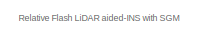
[diagram: root canvas - part 1/5, top left region]
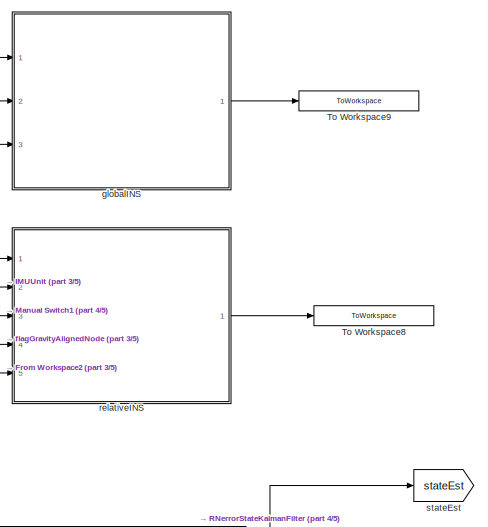
[diagram: root canvas - part 2/5, top right region]
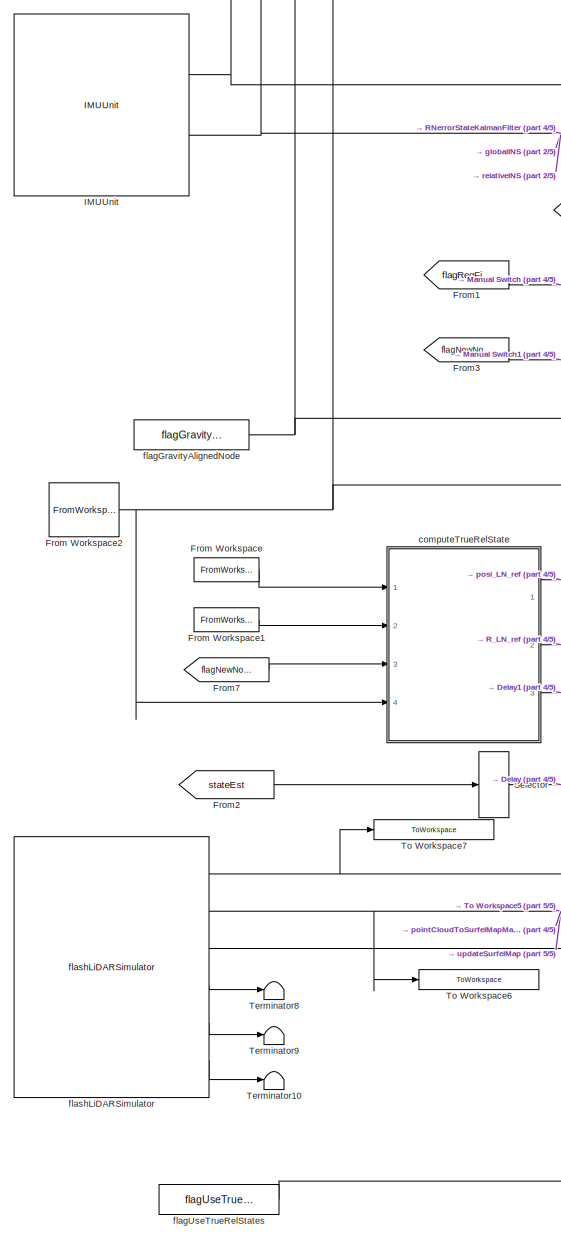
[diagram: root canvas - part 3/5, middle left region]
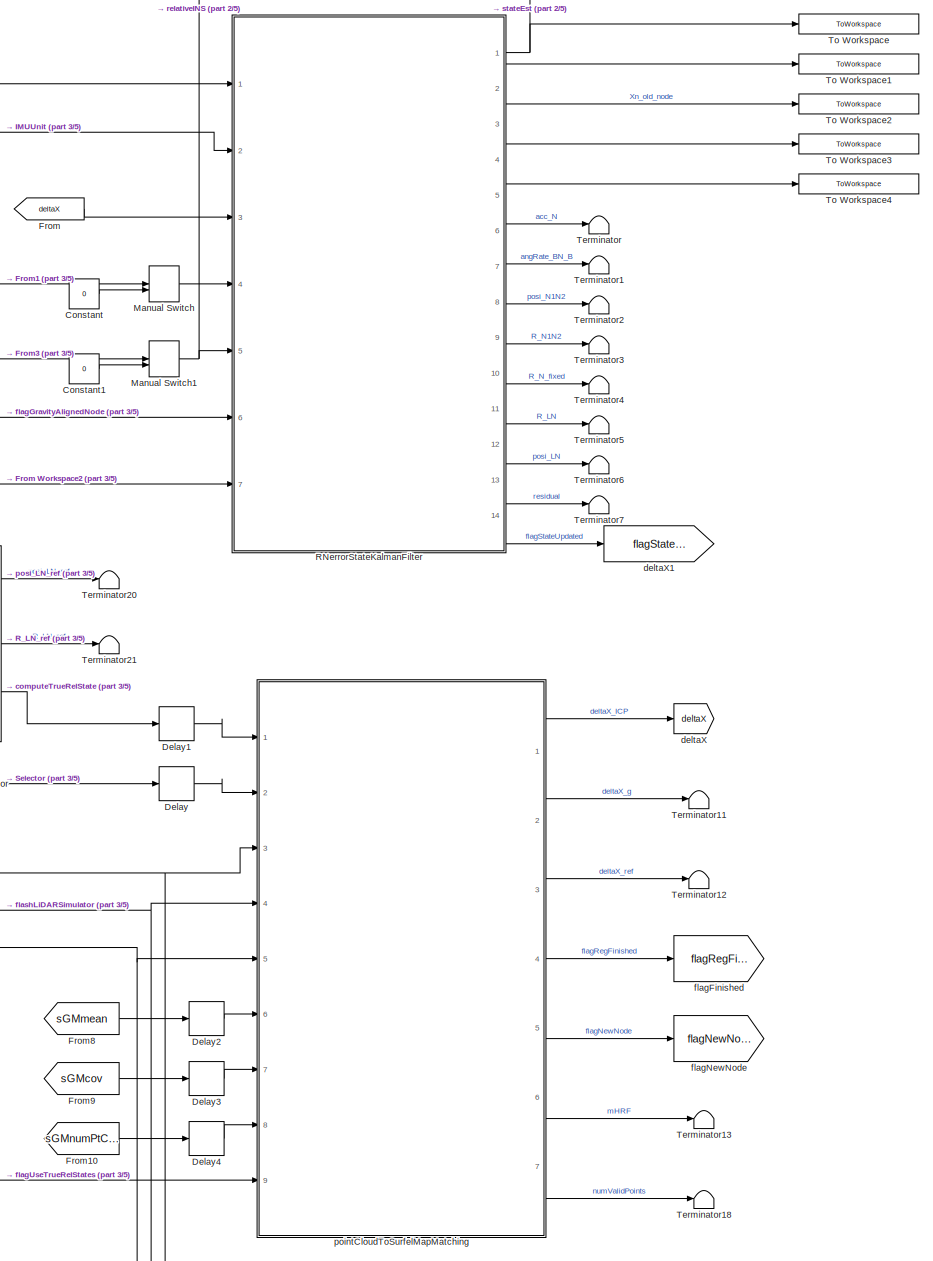
[diagram: root canvas - part 4/5, central region]
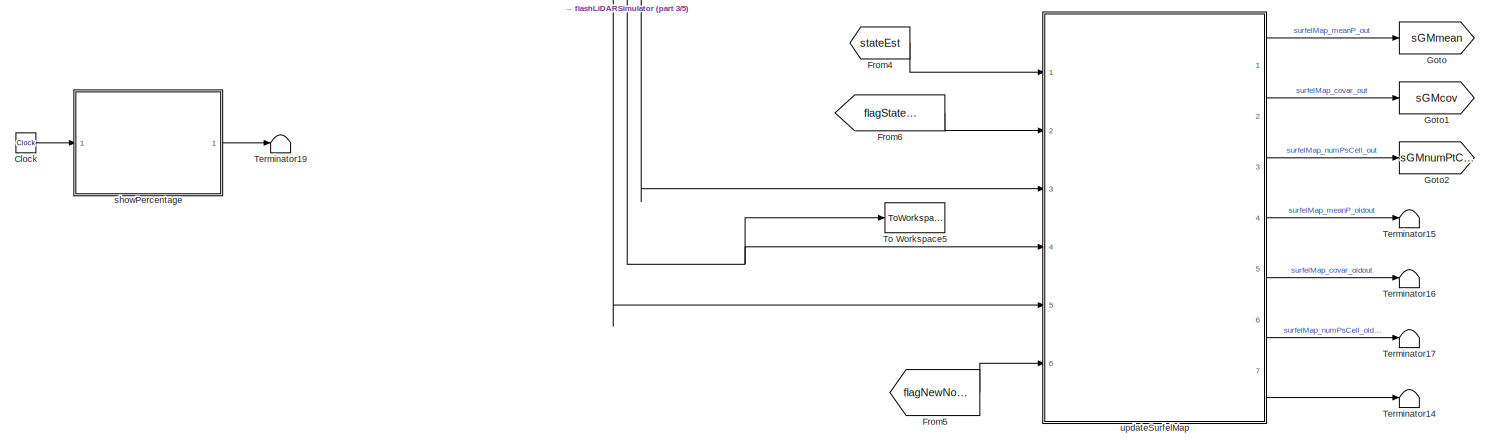
[diagram: root canvas - part 5/5, full width, bottom band]
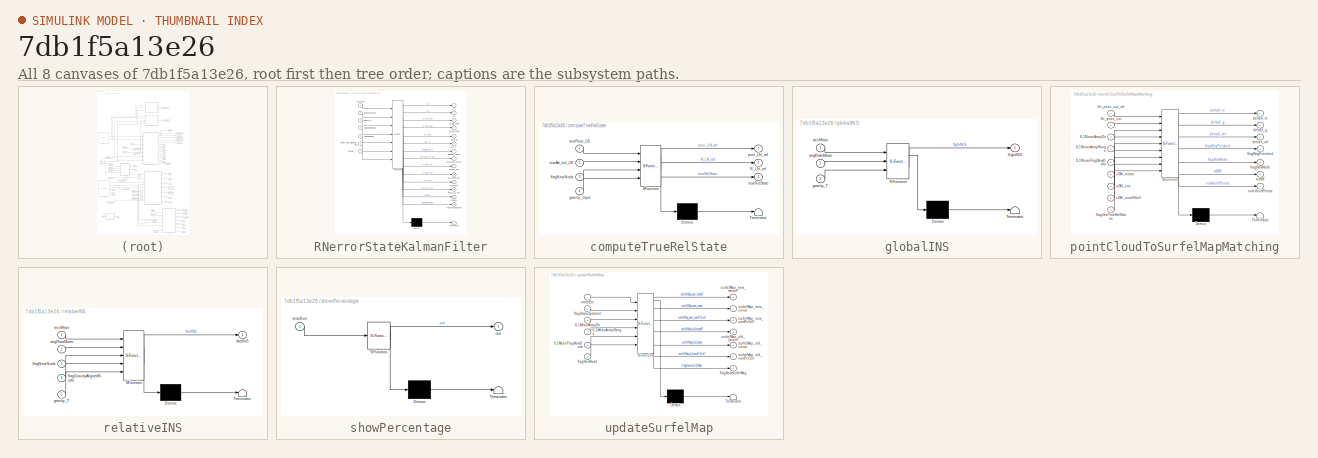
[diagram: thumbnail index - all 8 canvases of the model, root first then tree order]
MODEL slx_7db1f5a13e26
KIND model
CONFIG AbsTol = auto
CONFIG EnableMultiTasking = off
CONFIG FixedStep = dtSim
CONFIG MaxStep = auto
CONFIG MinStep = auto
CONFIG RelTol = 1e-3
CONFIG SampleTimeConstraint = Unconstrained
CONFIG SolverName = FixedStepAuto
CONFIG StartTime = 0.0
CONFIG StopTime = tEnd
BLOCK [Clock] Clock
BLOCK [Constant] Constant
  Value = 0
BLOCK [Constant] Constant1
  Value = 0
BLOCK [Delay] Delay
  DelayLength = 1
  InputPortMap = u0
  Ports = [1, 1]
BLOCK [Delay] Delay1
  DelayLength = 1
  InputPortMap = u0
  Ports = [1, 1]
BLOCK [Delay] Delay2
  DelayLength = 1
  InputPortMap = u0
  Ports = [1, 1]
BLOCK [Delay] Delay3
  DelayLength = 1
  InputPortMap = u0
  Ports = [1, 1]
BLOCK [Delay] Delay4
  DelayLength = 1
  InputPortMap = u0
  Ports = [1, 1]
BLOCK [From] From
  GotoTag = deltaX
BLOCK [FromWorkspace] From Workspace
  VariableName = dataBase.posi_LB_L_ref
BLOCK [FromWorkspace] From Workspace1
  VariableName = dataBase.eulAng_LB_ref
BLOCK [FromWorkspace] From Workspace2
  VariableName = gravity_input
BLOCK [From] From1
  GotoTag = flagRegFinished
BLOCK [From] From10
  GotoTag = sGMnumPtCell
BLOCK [From] From2
  GotoTag = stateEst
BLOCK [From] From3
  GotoTag = flagNewNode
BLOCK [From] From4
  GotoTag = stateEst
BLOCK [From] From5
  GotoTag = flagNewNode
BLOCK [From] From6
  GotoTag = flagStateUpdated
BLOCK [From] From7
  GotoTag = flagNewNode
BLOCK [From] From8
  GotoTag = sGMmean
BLOCK [From] From9
  GotoTag = sGMcov
BLOCK [Goto] Goto
  GotoTag = sGMmean
BLOCK [Goto] Goto1
  GotoTag = sGMcov
BLOCK [Goto] Goto2
  GotoTag = sGMnumPtCell
BLOCK [Reference] IMUUnit  REF=IMUUnit/IMUUnit
  Ports = [0, 2]
  SourceBlock = IMUUnit/IMUUnit
  SourceType = SubSystem
BLOCK [ManualSwitch] Manual Switch
BLOCK [ManualSwitch] Manual Switch1
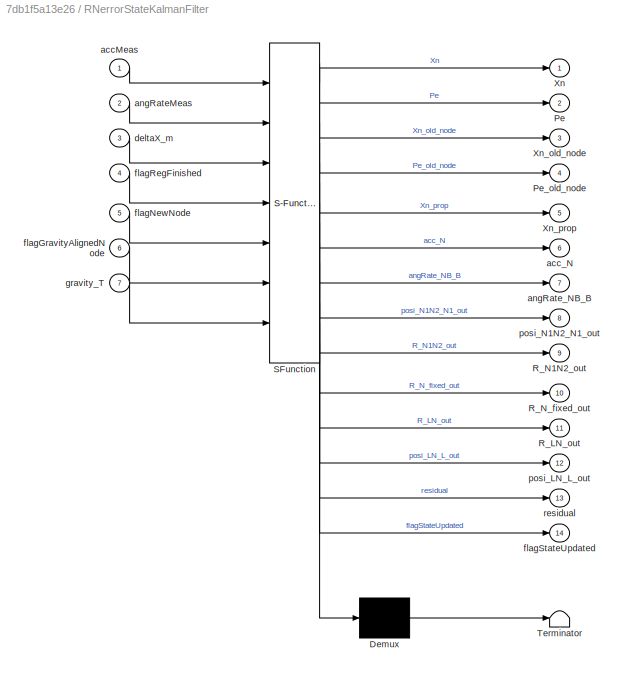
BLOCK [SubSystem] RNerrorStateKalmanFilter
  ErrorFcn = Stateflow.Translate.translate
  PermitHierarchicalResolution = ExplicitOnly
  Ports = [7, 14]
  RequestExecContextInheritance = off
  SFBlockType = MATLAB Function
  TreatAsAtomicUnit = on
BLOCK [Demux] RNerrorStateKalmanFilter/ Demux 
  Outputs = 1
  Ports = [1, 1]
BLOCK [S-Function] RNerrorStateKalmanFilter/ SFunction 
  EnableBusSupport = off
  FunctionName = sf_sfun
  Parameters = angRate_IT_T,covMeasNoise,covProcessNoise,dtSim,initCovState,initX,posi_TL_T,quat_TL
  PortCounts = [7 15]
  Ports = [7, 15]
  SFcnIsStateOwnerBlock = off
  SFunctionDeploymentMode = off
  Tag = Stateflow S-Function 2
BLOCK [Terminator] RNerrorStateKalmanFilter/ Terminator 
BLOCK [Outport] RNerrorStateKalmanFilter/Pe
  Port = 2
  VectorParamsAs1DForOutWhenUnconnected = off
BLOCK [Outport] RNerrorStateKalmanFilter/Pe_old_node
  Port = 4
  VectorParamsAs1DForOutWhenUnconnected = off
BLOCK [Outport] RNerrorStateKalmanFilter/R_LN_out
  Port = 11
  VectorParamsAs1DForOutWhenUnconnected = off
BLOCK [Outport] RNerrorStateKalmanFilter/R_N1N2_out
  Port = 9
  VectorParamsAs1DForOutWhenUnconnected = off
BLOCK [Outport] RNerrorStateKalmanFilter/R_N_fixed_out
  Port = 10
  VectorParamsAs1DForOutWhenUnconnected = off
BLOCK [Outport] RNerrorStateKalmanFilter/Xn
  VectorParamsAs1DForOutWhenUnconnected = off
BLOCK [Outport] RNerrorStateKalmanFilter/Xn_old_node
  Port = 3
  VectorParamsAs1DForOutWhenUnconnected = off
BLOCK [Outport] RNerrorStateKalmanFilter/Xn_prop
  Port = 5
  VectorParamsAs1DForOutWhenUnconnected = off
BLOCK [Inport] RNerrorStateKalmanFilter/accMeas
BLOCK [Outport] RNerrorStateKalmanFilter/acc_N
  Port = 6
  VectorParamsAs1DForOutWhenUnconnected = off
BLOCK [Inport] RNerrorStateKalmanFilter/angRateMeas
  Port = 2
BLOCK [Outport] RNerrorStateKalmanFilter/angRate_NB_B
  Port = 7
  VectorParamsAs1DForOutWhenUnconnected = off
BLOCK [Inport] RNerrorStateKalmanFilter/deltaX_m
  Port = 3
BLOCK [Inport] RNerrorStateKalmanFilter/flagGravityAlignedNode
  Port = 6
BLOCK [Inport] RNerrorStateKalmanFilter/flagNewNode
  Port = 5
BLOCK [Inport] RNerrorStateKalmanFilter/flagRegFinished
  Port = 4
BLOCK [Outport] RNerrorStateKalmanFilter/flagStateUpdated
  Port = 14
  VectorParamsAs1DForOutWhenUnconnected = off
BLOCK [Inport] RNerrorStateKalmanFilter/gravity_T
  Port = 7
BLOCK [Outport] RNerrorStateKalmanFilter/posi_LN_L_out
  Port = 12
  VectorParamsAs1DForOutWhenUnconnected = off
BLOCK [Outport] RNerrorStateKalmanFilter/posi_N1N2_N1_out
  Port = 8
  VectorParamsAs1DForOutWhenUnconnected = off
BLOCK [Outport] RNerrorStateKalmanFilter/residual
  Port = 13
  VectorParamsAs1DForOutWhenUnconnected = off
BLOCK [Selector] Selector
  IndexOptions = Index vector (dialog)
  Indices = [1:3 7:10]
  InputPortWidth = 10
  OutputSizes = 1
  Ports = [1, 1]
BLOCK [Terminator] Terminator
BLOCK [Terminator] Terminator1
BLOCK [Terminator] Terminator10
BLOCK [Terminator] Terminator11
BLOCK [Terminator] Terminator12
BLOCK [Terminator] Terminator13
BLOCK [Terminator] Terminator14
BLOCK [Terminator] Terminator15
BLOCK [Terminator] Terminator16
BLOCK [Terminator] Terminator17
BLOCK [Terminator] Terminator18
BLOCK [Terminator] Terminator19
BLOCK [Terminator] Terminator2
BLOCK [Terminator] Terminator20
BLOCK [Terminator] Terminator21
BLOCK [Terminator] Terminator3
BLOCK [Terminator] Terminator4
BLOCK [Terminator] Terminator5
BLOCK [Terminator] Terminator6
BLOCK [Terminator] Terminator7
BLOCK [Terminator] Terminator8
BLOCK [Terminator] Terminator9
BLOCK [ToWorkspace] To Workspace
  FixptAsFi = on
  MaxDataPoints = inf
  Ports = [1]
  SampleTime = -1
  SaveFormat = Structure With Time
  VariableName = stateEstimates
BLOCK [ToWorkspace] To Workspace1
  FixptAsFi = on
  MaxDataPoints = inf
  Ports = [1]
  SampleTime = -1
  SaveFormat = Structure With Time
  VariableName = errorCov
BLOCK [ToWorkspace] To Workspace2
  FixptAsFi = on
  MaxDataPoints = inf
  Ports = [1]
  SampleTime = -1
  SaveFormat = Structure With Time
  VariableName = Xn_old_node
BLOCK [ToWorkspace] To Workspace3
  FixptAsFi = on
  MaxDataPoints = inf
  Ports = [1]
  SampleTime = -1
  SaveFormat = Structure With Time
  VariableName = Pe_old_node
BLOCK [ToWorkspace] To Workspace4
  FixptAsFi = on
  MaxDataPoints = inf
  Ports = [1]
  SampleTime = -1
  SaveFormat = Structure With Time
  VariableName = Xn_node
BLOCK [ToWorkspace] To Workspace5
  Commented = on
  FixptAsFi = on
  MaxDataPoints = inf
  Ports = [1]
  SampleTime = -1
  SaveFormat = Structure With Time
  VariableName = fL1RangeData
BLOCK [ToWorkspace] To Workspace6
  FixptAsFi = on
  MaxDataPoints = inf
  Ports = [1]
  SampleTime = -1
  SaveFormat = Structure With Time
  VariableName = fL1Range
BLOCK [ToWorkspace] To Workspace7
  Commented = on
  FixptAsFi = on
  MaxDataPoints = inf
  Ports = [1]
  SampleTime = -1
  SaveFormat = Structure With Time
  VariableName = fL1Dir
BLOCK [ToWorkspace] To Workspace8
  FixptAsFi = on
  MaxDataPoints = inf
  Ports = [1]
  SampleTime = -1
  SaveFormat = Structure With Time
  VariableName = XrelINS
BLOCK [ToWorkspace] To Workspace9
  FixptAsFi = on
  MaxDataPoints = inf
  Ports = [1]
  SampleTime = -1
  SaveFormat = Structure With Time
  VariableName = XgloINS
BLOCK [SubSystem] computeTrueRelState
  ErrorFcn = Stateflow.Translate.translate
  PermitHierarchicalResolution = ExplicitOnly
  Ports = [4, 3]
  RequestExecContextInheritance = off
  SFBlockType = MATLAB Function
  TreatAsAtomicUnit = on
BLOCK [Demux] computeTrueRelState/ Demux 
  Outputs = 1
  Ports = [1, 1]
BLOCK [S-Function] computeTrueRelState/ SFunction 
  EnableBusSupport = off
  FunctionName = sf_sfun
  Parameters = angRate_IT_T,flagGravityAlignedNode,initX,posi_TL_T,quat_TL
  PortCounts = [4 4]
  Ports = [4, 4]
  SFcnIsStateOwnerBlock = off
  SFunctionDeploymentMode = off
  Tag = Stateflow S-Function 3
BLOCK [Terminator] computeTrueRelState/ Terminator 
BLOCK [Outport] computeTrueRelState/R_LN_ref
  Port = 2
  VectorParamsAs1DForOutWhenUnconnected = off
BLOCK [Inport] computeTrueRelState/flagNewNode
  Port = 3
BLOCK [Inport] computeTrueRelState/gravity_input
  Port = 4
BLOCK [Outport] computeTrueRelState/posi_LN_ref
  VectorParamsAs1DForOutWhenUnconnected = off
BLOCK [Inport] computeTrueRelState/trueAtt_eul_LB
  Port = 2
BLOCK [Inport] computeTrueRelState/truePose_LB
BLOCK [Outport] computeTrueRelState/trueRelState
  Port = 3
  VectorParamsAs1DForOutWhenUnconnected = off
BLOCK [Goto] deltaX
  GotoTag = deltaX
BLOCK [Goto] deltaX1
  GotoTag = flagStateUpdated
BLOCK [Goto] flagFinished
  GotoTag = flagRegFinished
BLOCK [Constant] flagGravityAlignedNode
  Value = flagGravityAlignedNode
BLOCK [Goto] flagNewNode
  GotoTag = flagNewNode
BLOCK [Constant] flagUseTrueRelStates
  Value = flagUseTrueRelStates
BLOCK [Reference] flashLiDARSimulator  REF=flashLiDARUnit/flashLiDARSimulator
  Ports = [0, 6]
  SourceBlock = flashLiDARUnit/flashLiDARSimulator
  SourceType = SubSystem
BLOCK [SubSystem] globalINS
  ErrorFcn = Stateflow.Translate.translate
  PermitHierarchicalResolution = ExplicitOnly
  Ports = [3, 1]
  RequestExecContextInheritance = off
  SFBlockType = MATLAB Function
  TreatAsAtomicUnit = on
BLOCK [Demux] globalINS/ Demux 
  Outputs = 1
  Ports = [1, 1]
BLOCK [S-Function] globalINS/ SFunction 
  EnableBusSupport = off
  FunctionName = sf_sfun
  Parameters = angRate_IT_T,dtSim,initX,posi_TL_T,quat_TL
  PortCounts = [3 2]
  Ports = [3, 2]
  SFcnIsStateOwnerBlock = off
  SFunctionDeploymentMode = off
  Tag = Stateflow S-Function 7
BLOCK [Terminator] globalINS/ Terminator 
BLOCK [Outport] globalINS/XgloINS
  VectorParamsAs1DForOutWhenUnconnected = off
BLOCK [Inport] globalINS/accMeas
BLOCK [Inport] globalINS/angRateMeas
  Port = 2
BLOCK [Inport] globalINS/gravity_T
  Port = 3
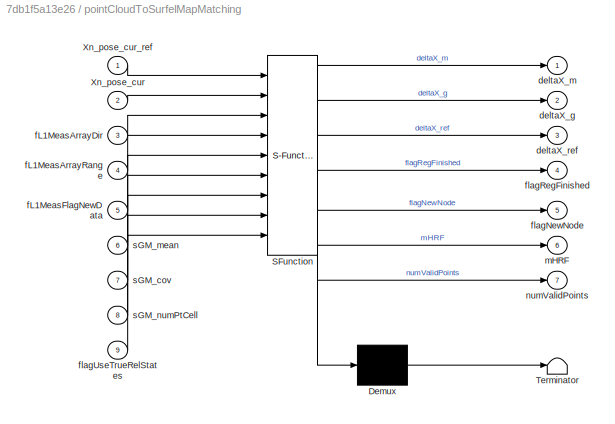
BLOCK [SubSystem] pointCloudToSurfelMapMatching
  ErrorFcn = Stateflow.Translate.translate
  PermitHierarchicalResolution = ExplicitOnly
  Ports = [9, 7]
  RequestExecContextInheritance = off
  SFBlockType = MATLAB Function
  TreatAsAtomicUnit = on
BLOCK [Demux] pointCloudToSurfelMapMatching/ Demux 
  Outputs = 1
  Ports = [1, 1]
BLOCK [S-Function] pointCloudToSurfelMapMatching/ SFunction 
  EnableBusSupport = off
  FunctionName = sf_sfun
  Parameters = fL1Pose_B,fLArrayDim,paramSGM
  PortCounts = [9 8]
  Ports = [9, 8]
  SFcnIsStateOwnerBlock = off
  SFunctionDeploymentMode = off
  Tag = Stateflow S-Function 1
BLOCK [Terminator] pointCloudToSurfelMapMatching/ Terminator 
BLOCK [Inport] pointCloudToSurfelMapMatching/Xn_pose_cur
  Port = 2
BLOCK [Inport] pointCloudToSurfelMapMatching/Xn_pose_cur_ref
BLOCK [Outport] pointCloudToSurfelMapMatching/deltaX_g
  Port = 2
  VectorParamsAs1DForOutWhenUnconnected = off
BLOCK [Outport] pointCloudToSurfelMapMatching/deltaX_m
  VectorParamsAs1DForOutWhenUnconnected = off
BLOCK [Outport] pointCloudToSurfelMapMatching/deltaX_ref
  Port = 3
  VectorParamsAs1DForOutWhenUnconnected = off
BLOCK [Inport] pointCloudToSurfelMapMatching/fL1MeasArrayDir
  Port = 3
BLOCK [Inport] pointCloudToSurfelMapMatching/fL1MeasArrayRange
  Port = 4
BLOCK [Inport] pointCloudToSurfelMapMatching/fL1MeasFlagNewData
  Port = 5
BLOCK [Outport] pointCloudToSurfelMapMatching/flagNewNode
  Port = 5
  VectorParamsAs1DForOutWhenUnconnected = off
BLOCK [Outport] pointCloudToSurfelMapMatching/flagRegFinished
  Port = 4
  VectorParamsAs1DForOutWhenUnconnected = off
BLOCK [Inport] pointCloudToSurfelMapMatching/flagUseTrueRelStates
  Port = 9
BLOCK [Outport] pointCloudToSurfelMapMatching/mHRF
  Port = 6
  VectorParamsAs1DForOutWhenUnconnected = off
BLOCK [Outport] pointCloudToSurfelMapMatching/numValidPoints
  Port = 7
  VectorParamsAs1DForOutWhenUnconnected = off
BLOCK [Inport] pointCloudToSurfelMapMatching/sGM_cov
  Port = 7
BLOCK [Inport] pointCloudToSurfelMapMatching/sGM_mean
  Port = 6
BLOCK [Inport] pointCloudToSurfelMapMatching/sGM_numPtCell
  Port = 8
BLOCK [SubSystem] relativeINS
  ErrorFcn = Stateflow.Translate.translate
  PermitHierarchicalResolution = ExplicitOnly
  Ports = [5, 1]
  RequestExecContextInheritance = off
  SFBlockType = MATLAB Function
  TreatAsAtomicUnit = on
BLOCK [Demux] relativeINS/ Demux 
  Outputs = 1
  Ports = [1, 1]
BLOCK [S-Function] relativeINS/ SFunction 
  EnableBusSupport = off
  FunctionName = sf_sfun
  Parameters = angRate_IT_T,dtSim,initX,posi_TL_T,quat_TL
  PortCounts = [5 2]
  Ports = [5, 2]
  SFcnIsStateOwnerBlock = off
  SFunctionDeploymentMode = off
  Tag = Stateflow S-Function 6
BLOCK [Terminator] relativeINS/ Terminator 
BLOCK [Outport] relativeINS/XrelINS
  VectorParamsAs1DForOutWhenUnconnected = off
BLOCK [Inport] relativeINS/accMeas
BLOCK [Inport] relativeINS/angRateMeas
  Port = 2
BLOCK [Inport] relativeINS/flagGravityAlignedNode
  Port = 4
BLOCK [Inport] relativeINS/flagNewNode
  Port = 3
BLOCK [Inport] relativeINS/gravity_T
  Port = 5
BLOCK [SubSystem] showPercentage
  ErrorFcn = Stateflow.Translate.translate
  PermitHierarchicalResolution = ExplicitOnly
  Ports = [1, 1]
  RequestExecContextInheritance = off
  SFBlockType = MATLAB Function
  TreatAsAtomicUnit = on
BLOCK [Demux] showPercentage/ Demux 
  Outputs = 1
  Ports = [1, 1]
BLOCK [S-Function] showPercentage/ SFunction 
  EnableBusSupport = off
  FunctionName = sf_sfun
  Parameters = tEnd
  PortCounts = [1 2]
  Ports = [1, 2]
  SFcnIsStateOwnerBlock = off
  SFunctionDeploymentMode = off
  Tag = Stateflow S-Function 5
BLOCK [Terminator] showPercentage/ Terminator 
BLOCK [Outport] showPercentage/out
  VectorParamsAs1DForOutWhenUnconnected = off
BLOCK [Inport] showPercentage/timeSim
BLOCK [Goto] stateEst
  GotoTag = stateEst
BLOCK [SubSystem] updateSurfelMap
  ErrorFcn = Stateflow.Translate.translate
  PermitHierarchicalResolution = ExplicitOnly
  Ports = [6, 7]
  RequestExecContextInheritance = off
  SFBlockType = MATLAB Function
  TreatAsAtomicUnit = on
BLOCK [Demux] updateSurfelMap/ Demux 
  Outputs = 1
  Ports = [1, 1]
BLOCK [S-Function] updateSurfelMap/ SFunction 
  EnableBusSupport = off
  FunctionName = sf_sfun
  Parameters = fL1Pose_B,paramSGM
  PortCounts = [6 8]
  Ports = [6, 8]
  SFcnIsStateOwnerBlock = off
  SFunctionDeploymentMode = off
  Tag = Stateflow S-Function 4
BLOCK [Terminator] updateSurfelMap/ Terminator 
BLOCK [Inport] updateSurfelMap/fL1MeasArrayDir
  Port = 3
BLOCK [Inport] updateSurfelMap/fL1MeasArrayRange
  Port = 4
BLOCK [Inport] updateSurfelMap/fL1MeasFlagNewData
  Port = 5
BLOCK [Inport] updateSurfelMap/flagNewNode
  Port = 6
BLOCK [Outport] updateSurfelMap/flagNewSurfelMap
  Port = 7
  VectorParamsAs1DForOutWhenUnconnected = off
BLOCK [Inport] updateSurfelMap/flagStateUpdated
  Port = 2
BLOCK [Inport] updateSurfelMap/stateEst
BLOCK [Outport] updateSurfelMap/surfelMap_new_covar
  Port = 2
  VectorParamsAs1DForOutWhenUnconnected = off
BLOCK [Outport] updateSurfelMap/surfelMap_new_meanP
  VectorParamsAs1DForOutWhenUnconnected = off
BLOCK [Outport] updateSurfelMap/surfelMap_new_numPsCell
  Port = 3
  VectorParamsAs1DForOutWhenUnconnected = off
BLOCK [Outport] updateSurfelMap/surfelMap_old_covar
  Port = 5
  VectorParamsAs1DForOutWhenUnconnected = off
BLOCK [Outport] updateSurfelMap/surfelMap_old_meanP
  Port = 4
  VectorParamsAs1DForOutWhenUnconnected = off
BLOCK [Outport] updateSurfelMap/surfelMap_old_numPsCell
  Port = 6
  VectorParamsAs1DForOutWhenUnconnected = off
ANNOTATION (root): Relative Flash LiDAR aided-INS with SGM
LINE Clock:1 -> showPercentage:1
LINE Constant1:1 -> Manual Switch1:2
LINE Constant:1 -> Manual Switch:2
LINE Delay1:1 -> pointCloudToSurfelMapMatching:1
LINE Delay2:1 -> pointCloudToSurfelMapMatching:6
LINE Delay3:1 -> pointCloudToSurfelMapMatching:7
LINE Delay4:1 -> pointCloudToSurfelMapMatching:8
LINE Delay:1 -> pointCloudToSurfelMapMatching:2
LINE From Workspace1:1 -> computeTrueRelState:2
NET From Workspace2:1 -> RNerrorStateKalmanFilter:7, computeTrueRelState:4, globalINS:3, relativeINS:5
LINE From Workspace:1 -> computeTrueRelState:1
LINE From10:1 -> Delay4:1
LINE From1:1 -> Manual Switch:1
LINE From2:1 -> Selector:1
LINE From3:1 -> Manual Switch1:1
LINE From4:1 -> updateSurfelMap:1
LINE From5:1 -> updateSurfelMap:6
LINE From6:1 -> updateSurfelMap:2
LINE From7:1 -> computeTrueRelState:3
LINE From8:1 -> Delay2:1
LINE From9:1 -> Delay3:1
LINE From:1 -> RNerrorStateKalmanFilter:3
NET IMUUnit:1 -> RNerrorStateKalmanFilter:1, globalINS:1, relativeINS:1
NET IMUUnit:2 -> RNerrorStateKalmanFilter:2, globalINS:2, relativeINS:2
NET Manual Switch1:1 -> RNerrorStateKalmanFilter:5, relativeINS:3
LINE Manual Switch:1 -> RNerrorStateKalmanFilter:4
NET RNerrorStateKalmanFilter:1 -> To Workspace:1, stateEst:1
LINE RNerrorStateKalmanFilter:10 -> Terminator4:1
LINE RNerrorStateKalmanFilter:11 -> Terminator5:1
LINE RNerrorStateKalmanFilter:12 -> Terminator6:1
LINE RNerrorStateKalmanFilter:13 -> Terminator7:1
LINE RNerrorStateKalmanFilter:14 -> deltaX1:1
LINE RNerrorStateKalmanFilter:2 -> To Workspace1:1
LINE RNerrorStateKalmanFilter:3 -> To Workspace2:1
LINE RNerrorStateKalmanFilter:4 -> To Workspace3:1
LINE RNerrorStateKalmanFilter:5 -> To Workspace4:1
LINE RNerrorStateKalmanFilter:6 -> Terminator:1
LINE RNerrorStateKalmanFilter:7 -> Terminator1:1
LINE RNerrorStateKalmanFilter:8 -> Terminator2:1
LINE RNerrorStateKalmanFilter:9 -> Terminator3:1
LINE Selector:1 -> Delay:1
LINE computeTrueRelState:1 -> Terminator20:1
LINE computeTrueRelState:2 -> Terminator21:1
LINE computeTrueRelState:3 -> Delay1:1
NET flagGravityAlignedNode:1 -> RNerrorStateKalmanFilter:6, relativeINS:4
LINE flagUseTrueRelStates:1 -> pointCloudToSurfelMapMatching:9
NET flashLiDARSimulator:1 -> To Workspace7:1, pointCloudToSurfelMapMatching:3, updateSurfelMap:3
NET flashLiDARSimulator:2 -> To Workspace5:1, To Workspace6:1, pointCloudToSurfelMapMatching:4, updateSurfelMap:4
NET flashLiDARSimulator:3 -> pointCloudToSurfelMapMatching:5, updateSurfelMap:5
LINE flashLiDARSimulator:4 -> Terminator8:1
LINE flashLiDARSimulator:5 -> Terminator9:1
LINE flashLiDARSimulator:6 -> Terminator10:1
LINE globalINS:1 -> To Workspace9:1
LINE pointCloudToSurfelMapMatching:1 -> deltaX:1
LINE pointCloudToSurfelMapMatching:2 -> Terminator11:1
LINE pointCloudToSurfelMapMatching:3 -> Terminator12:1
LINE pointCloudToSurfelMapMatching:4 -> flagFinished:1
LINE pointCloudToSurfelMapMatching:5 -> flagNewNode:1
LINE pointCloudToSurfelMapMatching:6 -> Terminator13:1
LINE pointCloudToSurfelMapMatching:7 -> Terminator18:1
LINE relativeINS:1 -> To Workspace8:1
LINE showPercentage:1 -> Terminator19:1
LINE updateSurfelMap:1 -> Goto:1
LINE updateSurfelMap:2 -> Goto1:1
LINE updateSurfelMap:3 -> Goto2:1
LINE updateSurfelMap:4 -> Terminator15:1
LINE updateSurfelMap:5 -> Terminator16:1
LINE updateSurfelMap:6 -> Terminator17:1
LINE updateSurfelMap:7 -> Terminator14:1
note: NET lines group one-source signal fan-out (src -> all destinations, sorted); 1:1 wires keep LINE
CHART updateSurfelMap states=1 transitions=1
  STATE_LABEL 'eML_blk_kernel()'
  STATE_LABEL 'SCRIPT:\nfunction [surfelMap_new_meanP, surfelMap_new_covar, surfelMap_new_numPsCell,...\n    surfelMap_old_meanP, surfelMap_old_covar, surfelMap_old_numPsCell,...\n    flagNewSurfelMap]=...\n    updateSurfelMap(stateEst, flagStateUpdated,...\n    fL1MeasArrayDir, fL1MeasArrayRange, fL1MeasFlagNewData, flagNewNode,...\n    paramSGM, fL1Pose_B)\n\npersistent SGM_intern; % surfelGridMap_intern\nif(isempty(SG...<+3608ch>'
CHART showPercentage states=1 transitions=1
  STATE_LABEL 'eML_blk_kernel()'
  STATE_LABEL "SCRIPT:\nfunction out = showPercentage(timeSim, tEnd)\npersistent percArray percentage\nif(isempty(percArray)),percArray = zeros(9,1);end\nif(isempty(percentage)),percentage = tEnd / 10;end\n\nout = 0;\n\nif((percArray(1)<0.5)&&(timeSim > percentage)),fprintf('Simulation over 10perc...\\n');percArray(1) = 1;end\nif((percArray(3)<0.5)&&(timeSim > 3*percentage)),fprintf('Simulation over 30perc...\\n');percArra...<+236ch>"
CHART relativeINS states=1 transitions=1
  STATE_LABEL 'eML_blk_kernel()'
  STATE_LABEL 'SCRIPT:\nfunction XrelINS = ...\n    relativeINS(accMeas, angRateMeas,...\n    flagNewNode, flagGravityAlignedNode, gravity_T,...                                 % inputs\n    angRate_IT_T, quat_TL, posi_TL_T, dtSim, initX)...                                 % parameters\n\n%% === initialization\npersistent X_last posi_LN_L R_LN ;\n% X_last; %nominal states of S/C from last iteration {10x1}\n% Xe_last; %er...<+3608ch>'
CHART globalINS states=1 transitions=1
  STATE_LABEL 'eML_blk_kernel()'
  STATE_LABEL 'SCRIPT:\nfunction XgloINS = ...\n    globalINS(accMeas, angRateMeas,gravity_T,...   % inputs\n    angRate_IT_T, quat_TL, posi_TL_T, dtSim, initX)% parameters\n\n%% === initialization\npersistent X_last posi_LN_L R_LN ;\n% X_last; %nominal states of S/C from last iteration {10x1}\n% Xe_last; %error states of the filter from last iteration {9x1}\n% Pe_last; %error covariance matrix of the filter from last it...<+2084ch>'
CHART pointCloudToSurfelMapMatching states=1 transitions=1
  STATE_LABEL 'eML_blk_kernel()'
  STATE_LABEL 'SCRIPT:\nfunction [deltaX_m, deltaX_g, deltaX_ref, flagRegFinished, flagNewNode, mHRF, numValidPoints] =...\n    pointCloudToSurfelMapMatching(Xn_pose_cur_ref,Xn_pose_cur,...\n    fL1MeasArrayDir, fL1MeasArrayRange, fL1MeasFlagNewData,...\n    sGM_mean, sGM_cov, sGM_numPtCell, flagUseTrueRelStates,...       %inputs\n    fLArrayDim, fL1Pose_B, paramSGM)                      %parameters)\n\n\n%% --- initial...<+3608ch>'
CHART RNerrorStateKalmanFilter states=1 transitions=1
  STATE_LABEL 'eML_blk_kernel()'
  STATE_LABEL 'SCRIPT:\nfunction [Xn, Pe, Xn_old_node, Pe_old_node, Xn_prop, acc_N, angRate_NB_B,...\n    posi_N1N2_N1_out, R_N1N2_out, R_N_fixed_out, R_LN_out, posi_LN_L_out,...\n    residual, flagStateUpdated] = ...\n    RNerrorStateKalmanFilter(accMeas, angRateMeas, deltaX_m,...\n    flagRegFinished, flagNewNode, flagGravityAlignedNode, gravity_T,...                                 % inputs\n    angRate_IT_T, quat_...<+3608ch>'
CHART computeTrueRelState states=1 transitions=1
  STATE_LABEL 'eML_blk_kernel()'
  STATE_LABEL 'SCRIPT:\nfunction [posi_LN_ref, R_LN_ref, trueRelState] = computeTrueRelState(truePose_LB, trueAtt_eul_LB,...\n                flagNewNode, gravity_input, initX, flagGravityAlignedNode,...\n                quat_TL, posi_TL_T, angRate_IT_T)\n\npersistent posi_LN R_LN;\nif isempty(posi_LN), posi_LN = initX(1:3,1);end\nif isempty(R_LN)\n%     R_LN = quat2rotmliub(initX(7:10,1));\n\tR_LN = eye(3);\nend\n\ntrueRelS...<+1398ch>'
CHART  states=0 transitions=0
CHART  states=0 transitions=0
CHART  states=0 transitions=0
CHART  states=0 transitions=0
CHART  states=0 transitions=0
CHART  states=0 transitions=0
CHART  states=0 transitions=0
